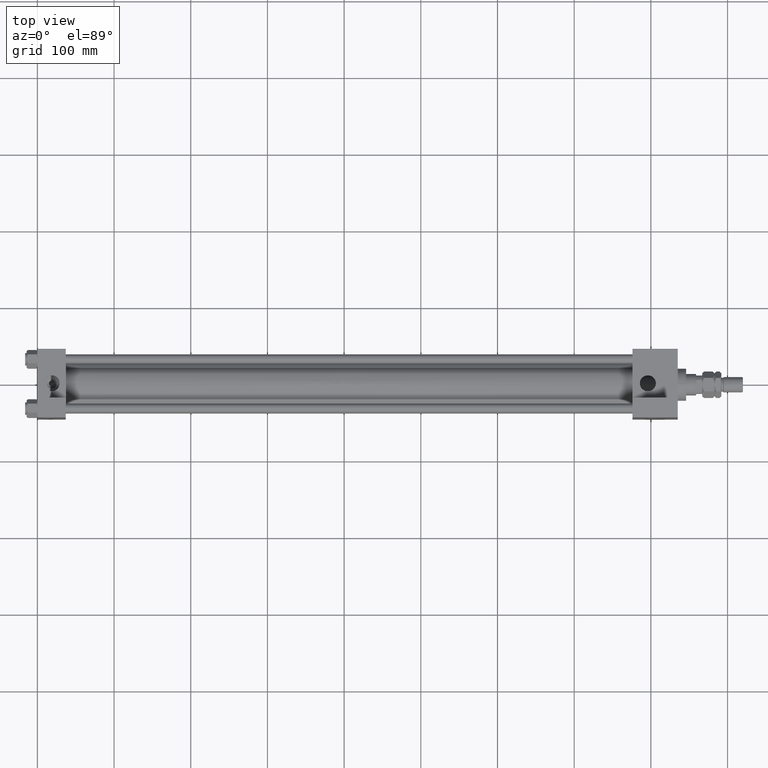
[diagram: clean part render]
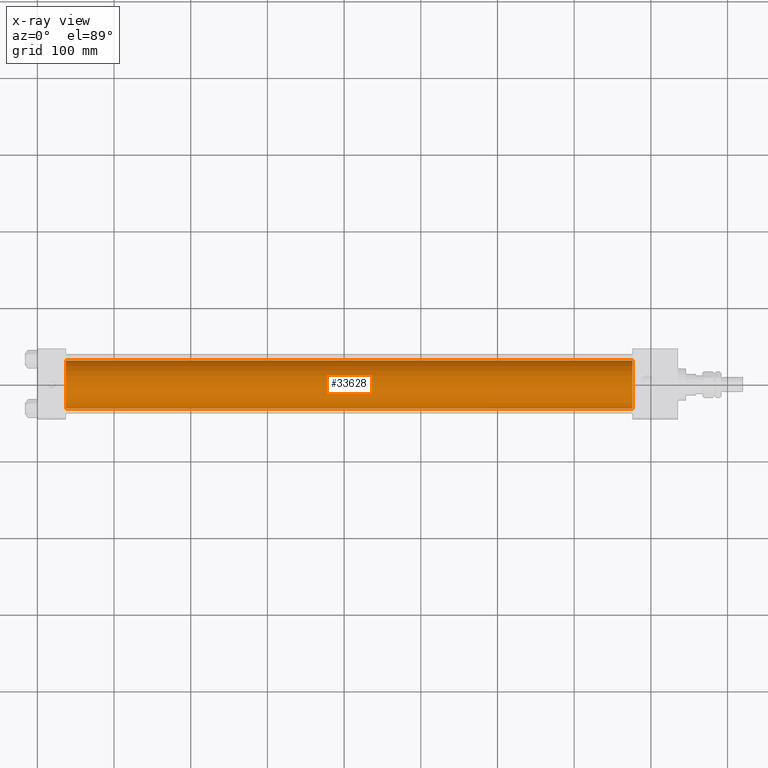
[diagram: x-ray — body ghosted, one internal face saturated and labeled with its STEP entity id]
A machine part, top view, then the same camera in x-ray: the body is ghosted and one INTERNAL B-rep face — a face not visible from any outside direction — is saturated and labeled: STEP entity #33628.
In plain terms, the highlighted cylindrical surface (edge-blend (fillet) strip) has radius 31.5 mm, axis along (-1, -0, 0).
Its self-contained STEP definition (entity closure, byte-faithful):
#2785 = CIRCLE ( 'NONE', #36957, 31.50000000000000000 ) ;
#3192 = VERTEX_POINT ( 'NONE', #27710 ) ;
#6336 = CYLINDRICAL_SURFACE ( 'NONE', #33987, 31.50000000000000000 ) ;
#6384 = EDGE_CURVE ( 'NONE', #45500, #18848, #17888, .T. ) ;
#9899 = DIRECTION ( 'NONE',  ( -1.000000000000000000, -0.000000000000000000, -0.000000000000000000 ) ) ;
#10558 = CARTESIAN_POINT ( 'NONE',  ( 776.0000000000000000, 0.000000000000000000, -1.000000000000007772 ) ) ;
#11507 = CARTESIAN_POINT ( 'NONE',  ( 776.0000000000000000, 0.000000000000000000, 30.49999999999999289 ) ) ;
#13648 = CARTESIAN_POINT ( 'NONE',  ( 776.0000000000000000, 3.857637417314161900E-15, -32.50000000000000711 ) ) ;
#14138 = CARTESIAN_POINT ( 'NONE',  ( 776.0000000000000000, 3.857637417314161900E-15, -32.50000000000000711 ) ) ;
#14293 = ORIENTED_EDGE ( 'NONE', *, *, #32223, .F. ) ;
#14295 = DIRECTION ( 'NONE',  ( -1.000000000000000000, -0.000000000000000000, -0.000000000000000000 ) ) ;
#16251 = ORIENTED_EDGE ( 'NONE', *, *, #6384, .T. ) ;
#17652 = CARTESIAN_POINT ( 'NONE',  ( 776.0000000000000000, 0.000000000000000000, -1.000000000000007772 ) ) ;
#17888 = LINE ( 'NONE', #14138, #41812 ) ;
#18848 = VERTEX_POINT ( 'NONE', #47912 ) ;
#20540 = ORIENTED_EDGE ( 'NONE', *, *, #31887, .F. ) ;
#21017 = FACE_OUTER_BOUND ( 'NONE', #36410, .T. ) ;
#23586 = AXIS2_PLACEMENT_3D ( 'NONE', #44262, #29346, #36563 ) ;
#24372 = VECTOR ( 'NONE', #29402, 1000.000000000000000 ) ;
#25810 = ORIENTED_EDGE ( 'NONE', *, *, #27503, .T. ) ;
#27503 = EDGE_CURVE ( 'NONE', #34608, #45500, #2785, .T. ) ;
#27710 = CARTESIAN_POINT ( 'NONE',  ( 37.00000000000000000, 0.000000000000000000, 30.49999999999999289 ) ) ;
#29346 = DIRECTION ( 'NONE',  ( 1.000000000000000000, 0.000000000000000000, 0.000000000000000000 ) ) ;
#29402 = DIRECTION ( 'NONE',  ( -1.000000000000000000, -0.000000000000000000, -0.000000000000000000 ) ) ;
#31887 = EDGE_CURVE ( 'NONE', #34608, #3192, #44066, .T. ) ;
#32223 = EDGE_CURVE ( 'NONE', #3192, #18848, #39490, .T. ) ;
#33628 = ADVANCED_FACE ( 'NONE', ( #21017 ), #6336, .F. ) ;
#33987 = AXIS2_PLACEMENT_3D ( 'NONE', #10558, #14295, #36441 ) ;
#34608 = VERTEX_POINT ( 'NONE', #11507 ) ;
#36410 = EDGE_LOOP ( 'NONE', ( #25810, #16251, #14293, #20540 ) ) ;
#36441 = DIRECTION ( 'NONE',  ( 0.000000000000000000, 0.000000000000000000, 1.000000000000000000 ) ) ;
#36563 = DIRECTION ( 'NONE',  ( 0.000000000000000000, 0.000000000000000000, -1.000000000000000000 ) ) ;
#36794 = DIRECTION ( 'NONE',  ( 0.000000000000000000, 0.000000000000000000, -1.000000000000000000 ) ) ;
#36957 = AXIS2_PLACEMENT_3D ( 'NONE', #17652, #47969, #36794 ) ;
#39490 = CIRCLE ( 'NONE', #23586, 31.50000000000000000 ) ;
#41812 = VECTOR ( 'NONE', #9899, 1000.000000000000000 ) ;
#44066 = LINE ( 'NONE', #45068, #24372 ) ;
#44262 = CARTESIAN_POINT ( 'NONE',  ( 37.00000000000000000, 0.000000000000000000, -1.000000000000007772 ) ) ;
#45068 = CARTESIAN_POINT ( 'NONE',  ( 776.0000000000000000, 0.000000000000000000, 30.49999999999999289 ) ) ;
#45500 = VERTEX_POINT ( 'NONE', #13648 ) ;
#47912 = CARTESIAN_POINT ( 'NONE',  ( 37.00000000000000000, 3.857637417314161900E-15, -32.50000000000000711 ) ) ;
#47969 = DIRECTION ( 'NONE',  ( 1.000000000000000000, 0.000000000000000000, 0.000000000000000000 ) ) ;